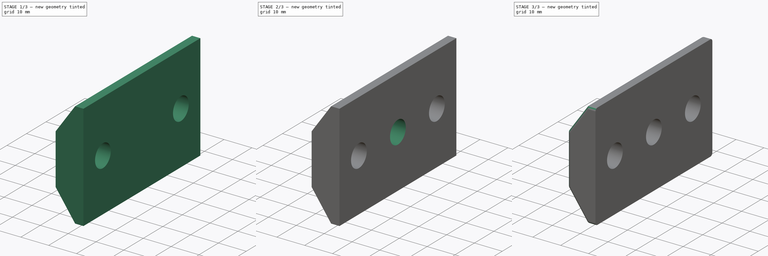
[diagram: build sequence overview — one tinted view per stage of 3, left to right]
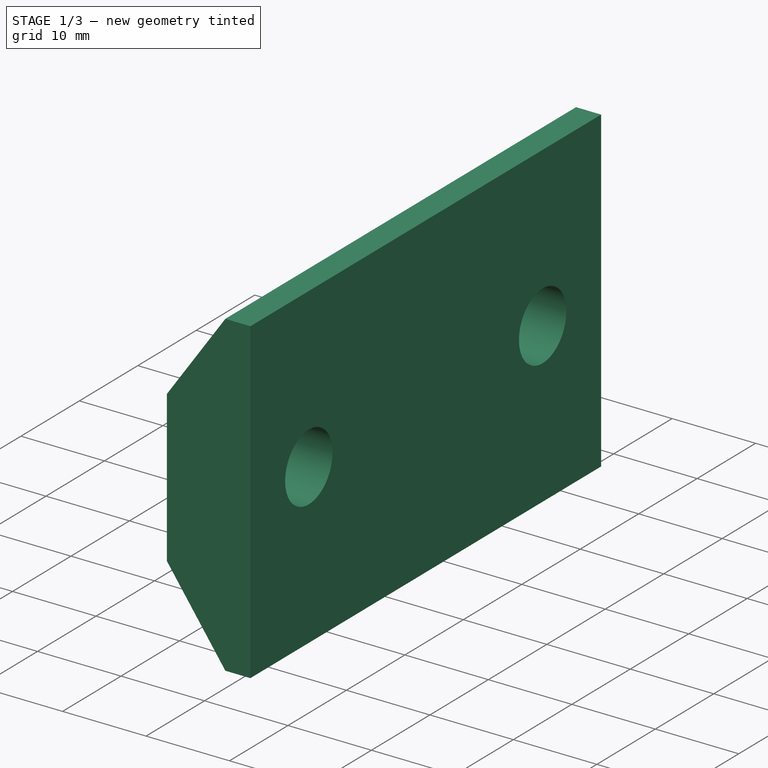
[diagram: stage 1 of 3 — iso view after this stage's code; geometry added in this stage tinted green]
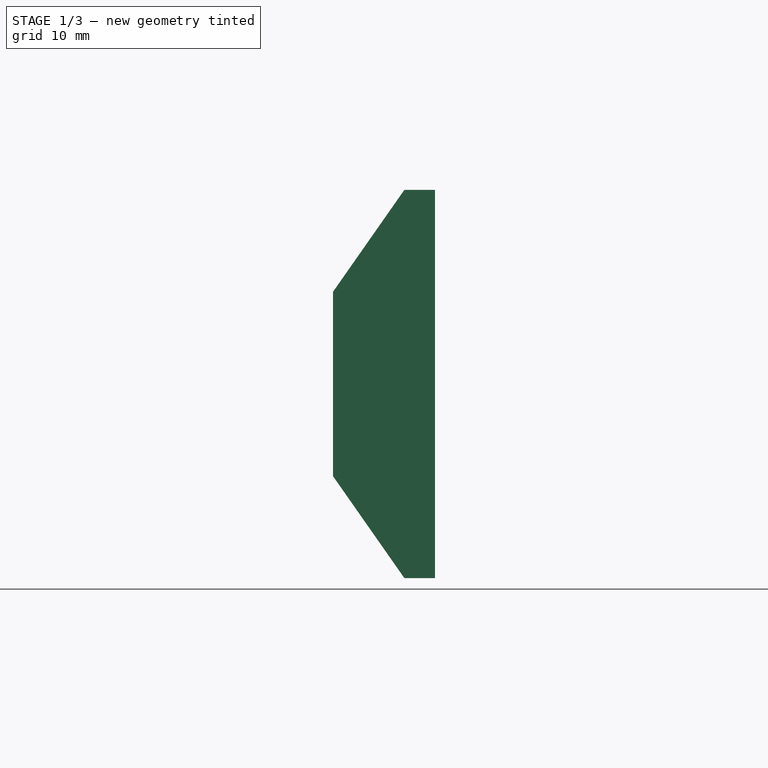
[diagram: stage 1 of 3 — front view after this stage's code; geometry added in this stage tinted green]
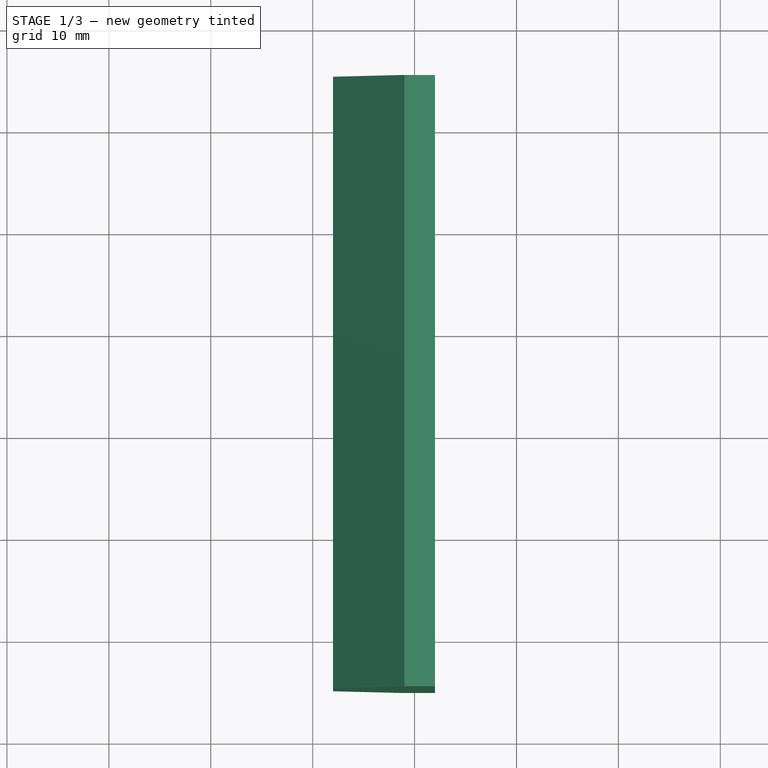
[diagram: stage 1 of 3 — top view after this stage's code; geometry added in this stage tinted green]
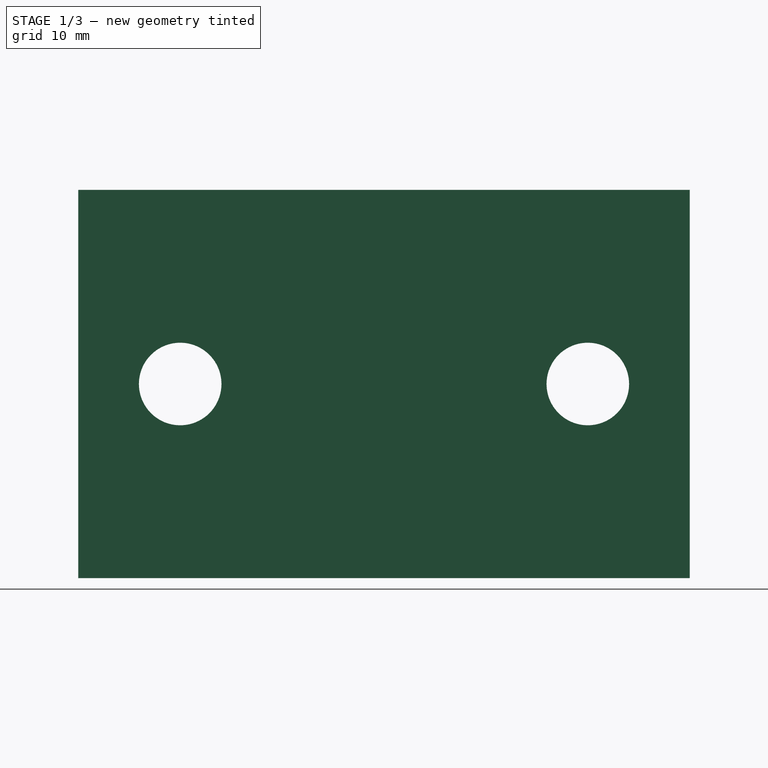
[diagram: stage 1 of 3 — right view after this stage's code; geometry added in this stage tinted green]
FCSTD DOCUMENT  (FreeCAD 0.19R21938 (Git))
Label: bottom-brace-rod-holder
License: All rights reserved
LicenseURL: http://en.wikipedia.org/wiki/All_rights_reserved
objects: Sketcher::SketchObject×4, PartDesign::Pocket×3, PartDesign::Fillet×2, PartDesign::Pad×1, PartDesign::Body×1
note: 17 computed .brp shape members not serialized (recipe doc carries the construction recipe); baked Part::Feature solids carry a one-line shape summary decoded from their .brp

FEATURE [Sketcher::SketchObject] Sketch023
  AttachmentOffset = pos=(0,0,322) rot=(0,0,1;0rad)
  MapMode = 5
  Placement = pos=(322,-7.15e-14,7.15e-14) rot=(0.57735,0.57735,0.57735;2.0944rad)
  Support = -> [YZ_Plane003]
  expr: Constraints[0] = Sketch022.Constraints[0]
  expr: Constraints[1] = Sketch022.Constraints[1]
  sketch-geometry (3):
    g0: GeomPoint X=-55 Y=31 Z=0
    g1: Circle CenterX=-75 CenterY=31 CenterZ=0 NormalX=0 NormalY=0 NormalZ=1 AngleXU=0 Radius=8.65
    g2: Circle CenterX=-35 CenterY=31 CenterZ=0 NormalX=0 NormalY=0 NormalZ=1 AngleXU=0 Radius=8.65
  constraints (8):
    c: DistanceX(g0,g-1) = 55
    c: DistanceY(g-1,g0) = 31
    c: Diameter(g1) = 17.3
    c: Equal(g1,g2)
    c: DistanceX(g1,g0) = 20
    c: DistanceX(g0,g2) = 20
    c: DistanceY(g1,g0) = 0
    c: DistanceY(g2,g0) = 0
FEATURE [Sketcher::SketchObject] Sketch021
  AttachmentOffset = pos=(0,0,25) rot=(0,0,1;0rad)
  MapMode = 5
  Placement = pos=(0,-25,-5.6e-15) rot=(1,0,0;1.5708rad)
  Support = -> [XZ_Plane003]
  sketch-geometry (8):
    g0: GeomPoint X=332 Y=31 Z=0
    g1: LineSegment StartX=332 StartY=31 StartZ=0 EndX=332 EndY=50.05 EndZ=0
    g2: LineSegment StartX=332 StartY=31 StartZ=0 EndX=332 EndY=11.95 EndZ=0
    g3: LineSegment StartX=332 StartY=50.05 StartZ=0 EndX=329 EndY=50.05 EndZ=0
    g4: LineSegment StartX=329 StartY=50.05 StartZ=0 EndX=322 EndY=40.05 EndZ=0
    g5: LineSegment StartX=322 StartY=40.05 StartZ=0 EndX=322 EndY=21.95 EndZ=0
    g6: LineSegment StartX=322 StartY=21.95 StartZ=0 EndX=329 EndY=11.95 EndZ=0
    g7: LineSegment StartX=329 StartY=11.95 StartZ=0 EndX=332 EndY=11.95 EndZ=0
  constraints (22):
    c: DistanceY(g-1,g0) = 31
    c: DistanceX(g-1,g0) = 332
    c: Coincident(g1,g0)
    c: Vertical(g1)
    c: Coincident(g2,g0)
    c: Vertical(g2)
    c: DistanceY(g1,g1) = 19.05
    c: Equal(g2,g1)
    c: Coincident(g3,g1)
    c: Horizontal(g3)
    c: Coincident(g4,g3)
    c: Coincident(g5,g4)
    c: Vertical(g5)
    c: Coincident(g6,g5)
    c: Coincident(g7,g6)
    c: Coincident(g7,g2)
    c: DistanceX(g6,g3) = 0
    c: DistanceX(g3,g3) = 3
    c: DistanceX(g4,g1) = 10
    c: DistanceY(g4,g3) = 10
    c: DistanceY(g6,g5) = 10
    c: Horizontal(g7)
FEATURE [Sketcher::SketchObject] Sketch022
  MapMode = 5
  Placement = pos=(0,0,0) rot=(0.57735,0.57735,0.57735;2.0944rad)
  Support = -> [YZ_Plane003]
  sketch-geometry (3):
    g0: GeomPoint X=-55 Y=31 Z=0
    g1: Circle CenterX=-75 CenterY=31 CenterZ=0 NormalX=0 NormalY=0 NormalZ=1 AngleXU=0 Radius=4.05
    g2: Circle CenterX=-35 CenterY=31 CenterZ=0 NormalX=0 NormalY=0 NormalZ=1 AngleXU=0 Radius=4.05
  constraints (8):
    c: DistanceX(g0,g-1) = 55
    c: DistanceY(g-1,g0) = 31
    c: Diameter(g1) = 8.1
    c: DistanceY(g0,g1) = 0
    c: Equal(g1,g2)
    c: DistanceX(g1,g0) = 20
    c: DistanceX(g0,g2) = 20
    c: DistanceY(g2,g0) = 0
FEATURE [PartDesign::Pad] Pad003
  Length = 60
  Length2 = 100
  Placement = pos=(0,0,0) rot=(1,0,0;1.5708rad)
  Profile = -> Sketch021
  Type = 0
FEATURE [PartDesign::Pocket] Pocket018
  BaseFeature = -> Pad003
  Length = 5
  Length2 = 100
  Placement = pos=(0,0,0) rot=(1,0,0;1.5708rad)
  Profile = -> Sketch022
  Reversed = true
  Type = 1
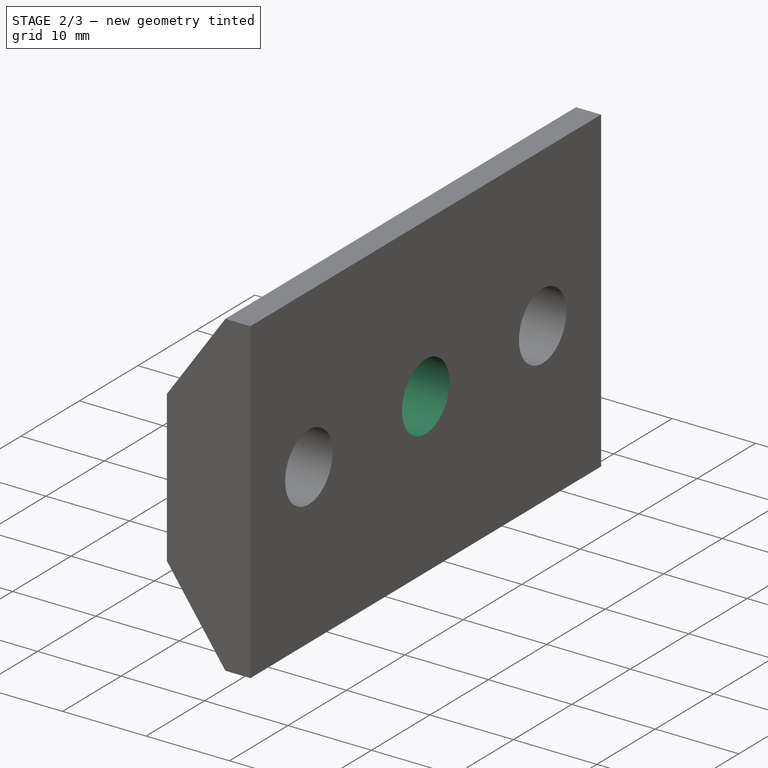
[diagram: stage 2 of 3 — iso view after this stage's code; geometry added in this stage tinted green]
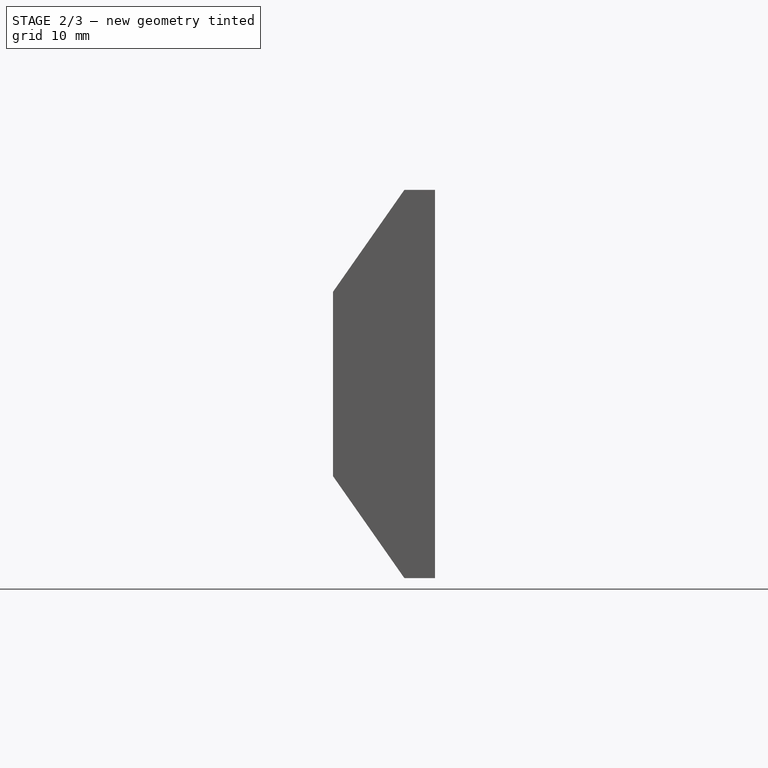
[diagram: stage 2 of 3 — front view after this stage's code; geometry added in this stage tinted green]
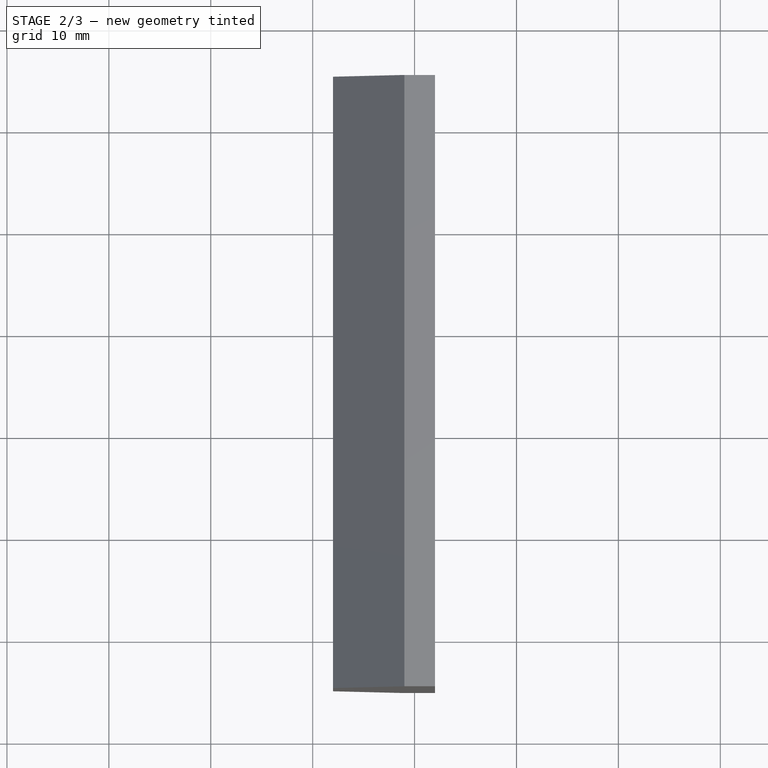
[diagram: stage 2 of 3 — top view after this stage's code; geometry added in this stage tinted green]
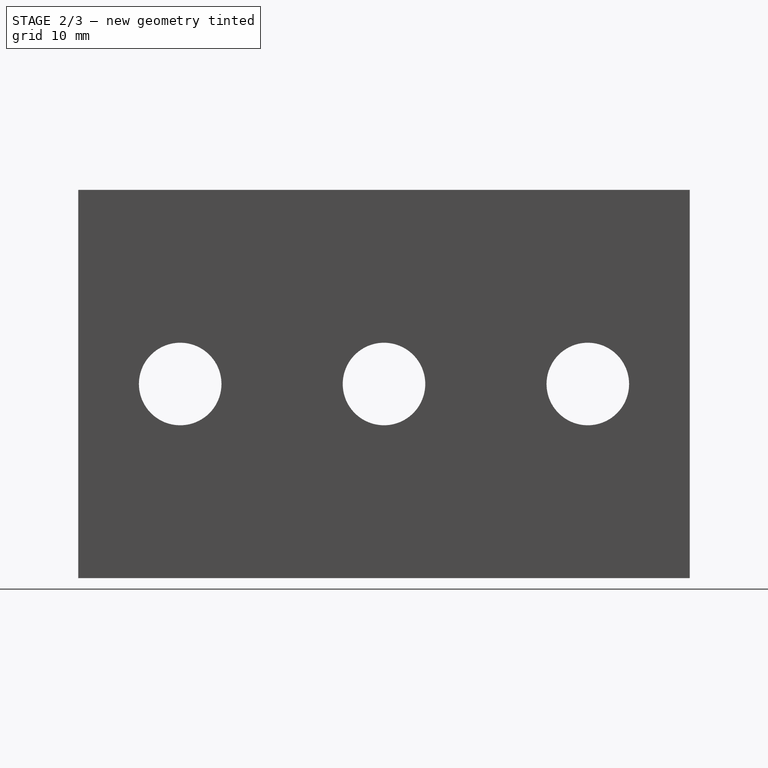
[diagram: stage 2 of 3 — right view after this stage's code; geometry added in this stage tinted green]
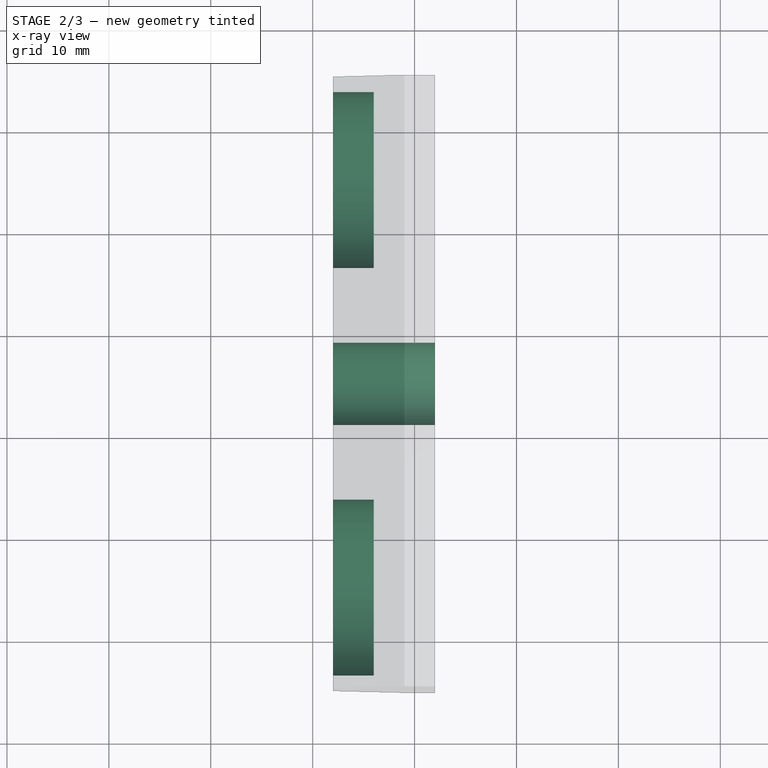
[diagram: stage 2 of 3 — x-ray composite at the top view; earlier geometry ghosted, this stage's added geometry solid]
FEATURE [PartDesign::Pocket] Pocket019
  BaseFeature = -> Pocket018
  Length = 4
  Length2 = 100
  Placement = pos=(0,0,0) rot=(1,0,0;1.5708rad)
  Profile = -> Sketch023
  Reversed = true
  Type = 0
FEATURE [Sketcher::SketchObject] Sketch024
  MapMode = 5
  Placement = pos=(0,0,0) rot=(0.57735,0.57735,0.57735;2.0944rad)
  Support = -> [YZ_Plane003]
  expr: Constraints[0] = Sketch022.Constraints[0]
  expr: Constraints[1] = Sketch022.Constraints[1]
  sketch-geometry (2):
    g0: GeomPoint X=-55 Y=31 Z=0
    g1: Circle CenterX=-55 CenterY=31 CenterZ=0 NormalX=0 NormalY=0 NormalZ=1 AngleXU=0 Radius=4.05
  constraints (4):
    c: DistanceX(g0,g-1) = 55
    c: DistanceY(g-1,g0) = 31
    c: Coincident(g1,g0)
    c: Diameter(g1) = 8.1
FEATURE [PartDesign::Pocket] Pocket020
  BaseFeature = -> Pocket019
  Length = 5
  Length2 = 100
  Placement = pos=(0,0,0) rot=(1,0,0;1.5708rad)
  Profile = -> Sketch024
  Reversed = true
  Type = 1
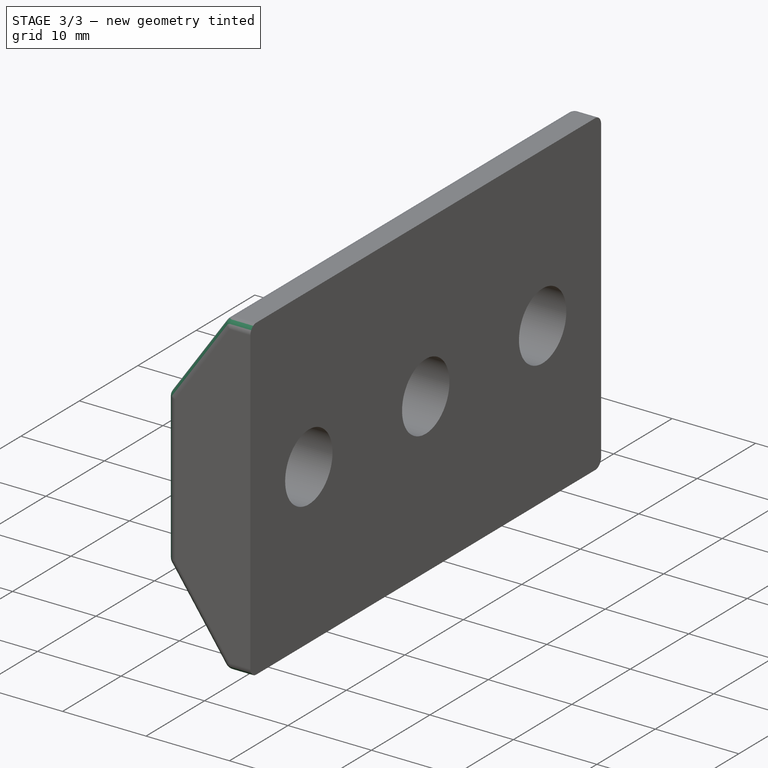
[diagram: stage 3 of 3 — iso view after this stage's code; geometry added in this stage tinted green]
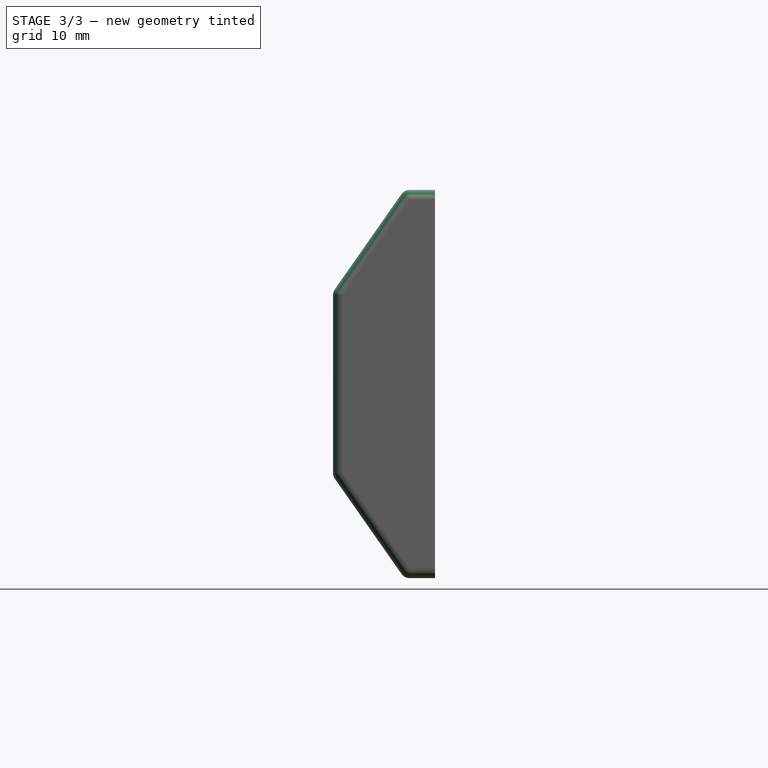
[diagram: stage 3 of 3 — front view after this stage's code; geometry added in this stage tinted green]
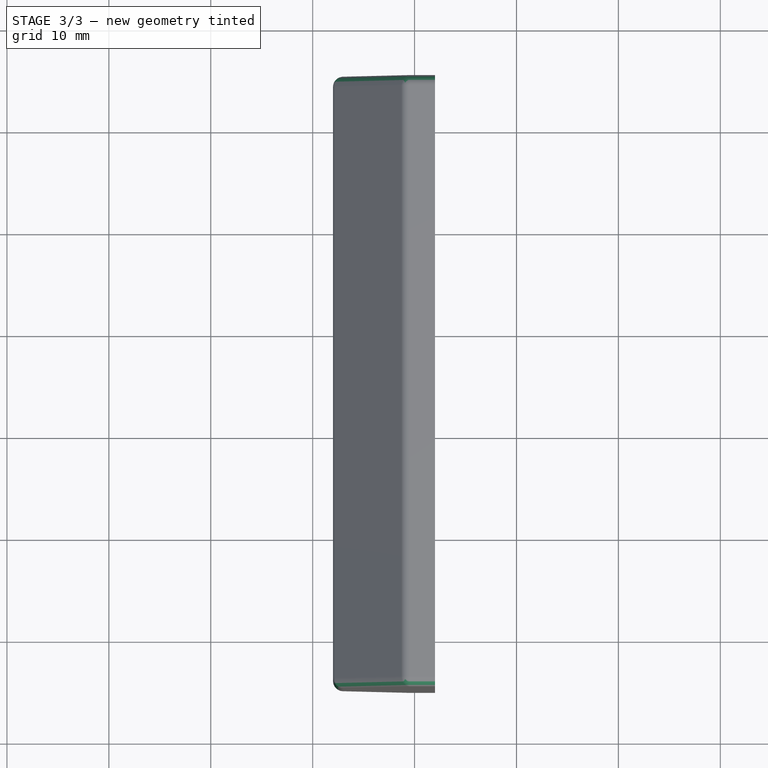
[diagram: stage 3 of 3 — top view after this stage's code; geometry added in this stage tinted green]
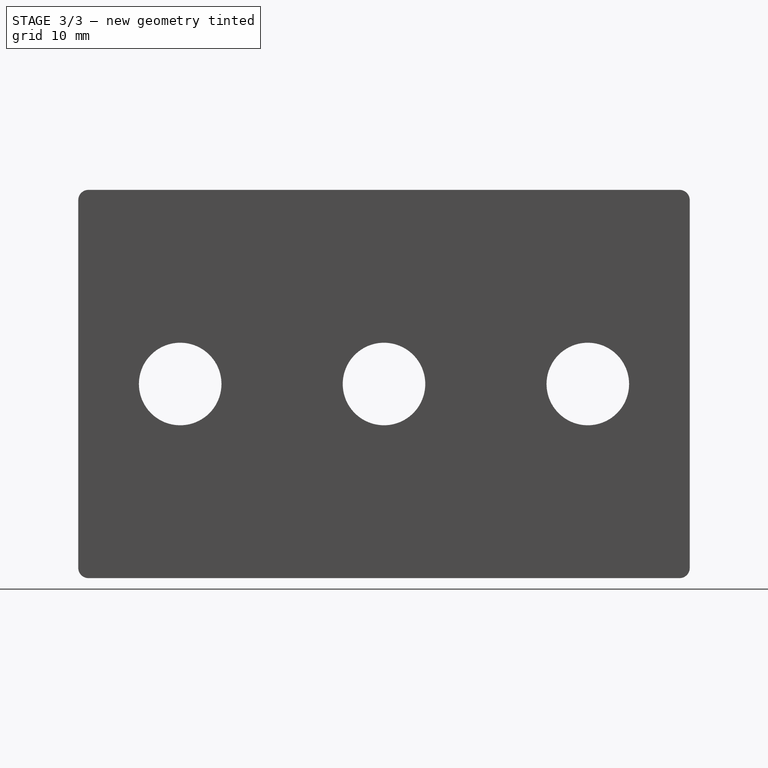
[diagram: stage 3 of 3 — right view after this stage's code; geometry added in this stage tinted green]
FEATURE [PartDesign::Fillet] Fillet006
  Base = -> Pocket020 [Edge38,Edge35,Edge34,Edge17]
  BaseFeature = -> Pocket020
  Placement = pos=(0,0,0) rot=(1,0,0;1.5708rad)
  Radius = 1
  SupportTransform = false
FEATURE [PartDesign::Fillet] Fillet007
  Base = -> Fillet006 [Edge4,Edge8,Edge11,Edge45,Edge37,Edge26]
  BaseFeature = -> Fillet006
  Placement = pos=(0,0,0) rot=(1,0,0;1.5708rad)
  Radius = 1
  SupportTransform = false
FEATURE [PartDesign::Body] Body003  label="bottom-brace-rod-holder"
  Group = -> [Sketch021,Pad003,Sketch022,Pocket018,Sketch023,Pocket019,Sketch024,Pocket020,Fillet006,Fillet007]
  Origin = -> Origin003
  Tip = -> Fillet007
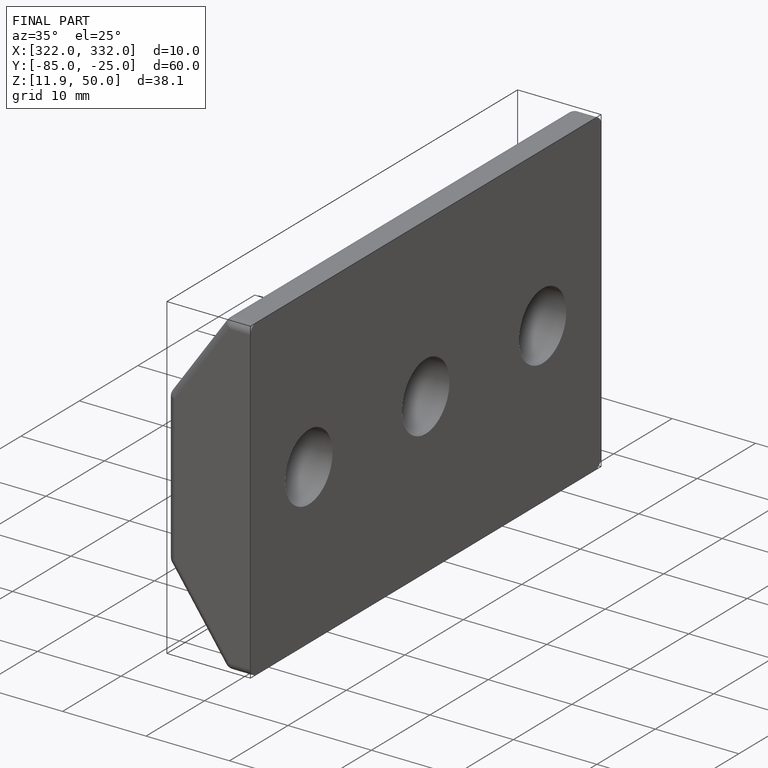
[diagram: finished part — iso view with bounding-box wireframe]
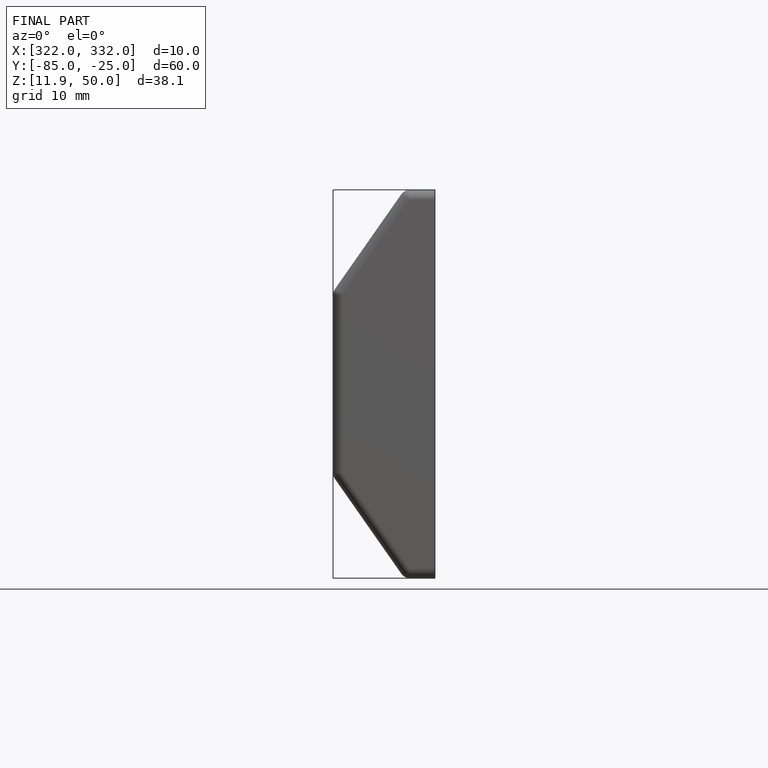
[diagram: finished part — front view with bounding-box wireframe]
